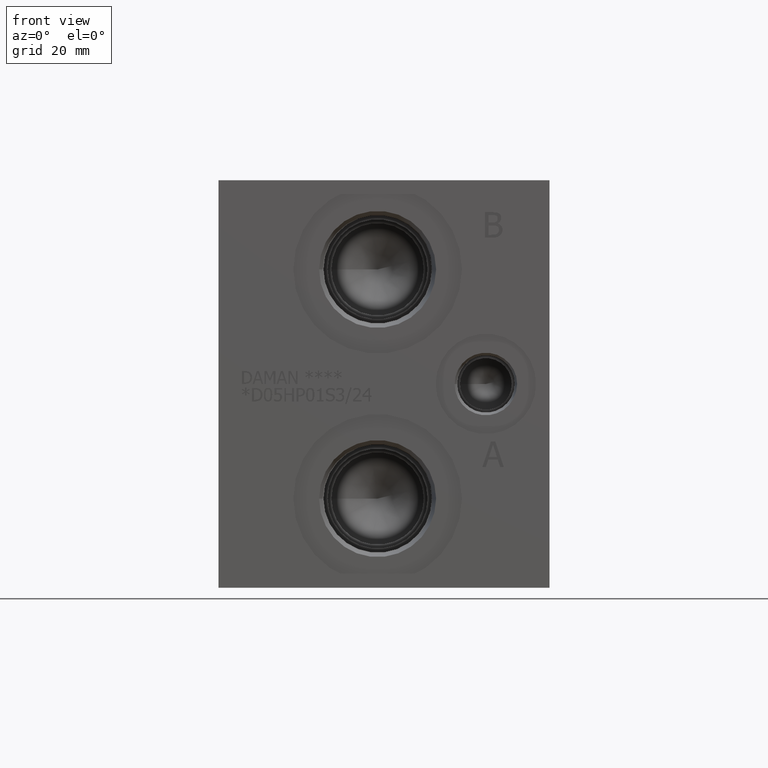
[diagram: clean part render]
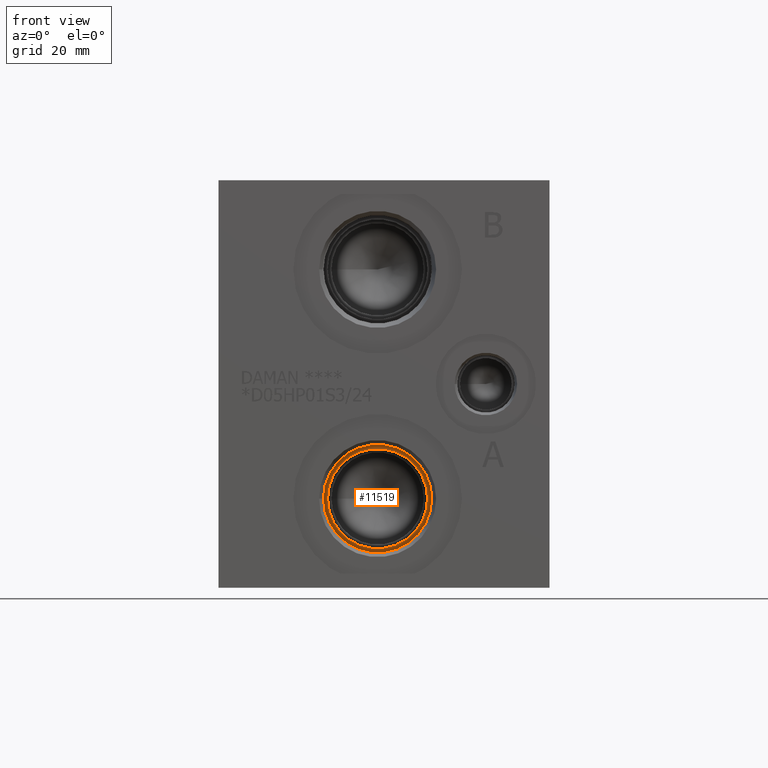
[diagram: same view with one face highlighted and labeled with its STEP entity id]
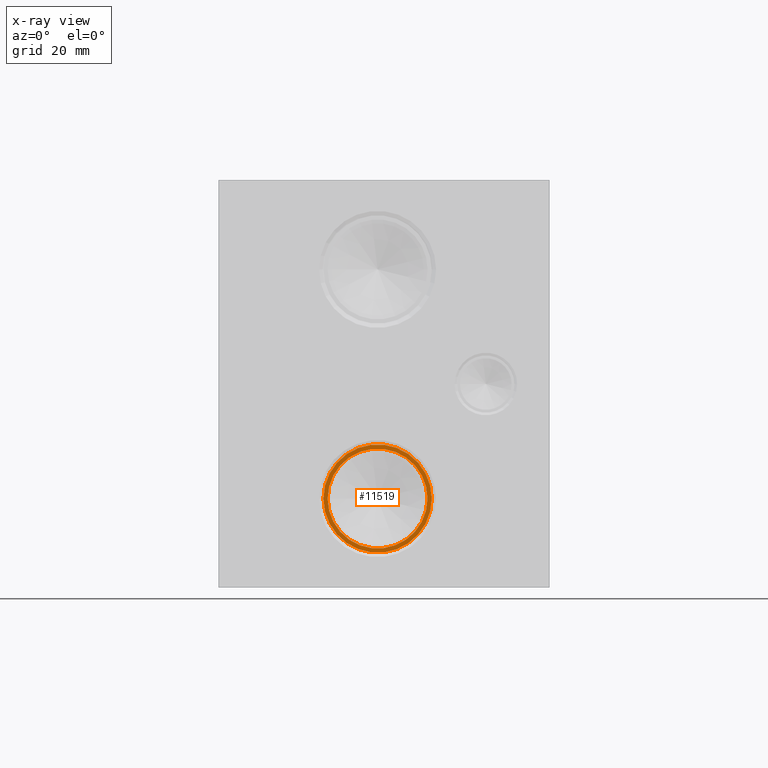
[diagram: x-ray of the same camera — body ghosted, the highlighted face saturated]
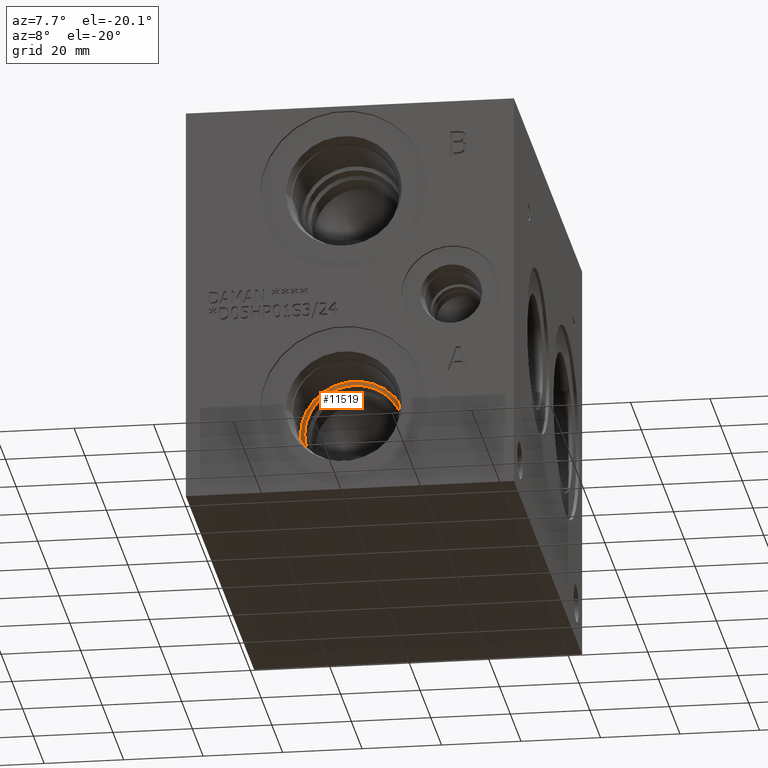
[diagram: same view with one face highlighted and labeled with its STEP entity id]
A machine part, front view. The second image highlights one B-rep face of the part: STEP entity #11519.
The next image is the same camera in x-ray: the body ghosted, the highlighted face saturated — about 0% of this face is hidden behind the body in this view.
A second angle (auxiliary view) of the same face is appended — the face is thin or edge-on in the first view.
In plain terms, the highlighted planar face has unit normal (0, -1, 0).
Its self-contained STEP definition (entity closure, byte-faithful):
#334=CIRCLE('',#12198,13.5001);
#335=CIRCLE('',#12199,13.5001);
#336=CIRCLE('',#12200,12.4587);
#435=FACE_BOUND('',#2098,.T.);
#1432=FACE_OUTER_BOUND('',#2097,.T.);
#2097=EDGE_LOOP('',(#10018,#10019));
#2098=EDGE_LOOP('',(#10020));
#5355=VERTEX_POINT('',#19689);
#5356=VERTEX_POINT('',#19690);
#5357=VERTEX_POINT('',#19693);
#6933=EDGE_CURVE('',#5355,#5356,#334,.T.);
#6934=EDGE_CURVE('',#5356,#5355,#335,.T.);
#6935=EDGE_CURVE('',#5357,#5357,#336,.T.);
#10018=ORIENTED_EDGE('',*,*,#6933,.T.);
#10019=ORIENTED_EDGE('',*,*,#6934,.T.);
#10020=ORIENTED_EDGE('',*,*,#6935,.F.);
#10501=PLANE('',#12197);
#11519=ADVANCED_FACE('',(#1432,#435),#10501,.T.);
#12197=AXIS2_PLACEMENT_3D('',#19688,#14594,#14595);
#12198=AXIS2_PLACEMENT_3D('',#19691,#14596,#14597);
#12199=AXIS2_PLACEMENT_3D('',#19692,#14598,#14599);
#12200=AXIS2_PLACEMENT_3D('',#19694,#14600,#14601);
#14594=DIRECTION('center_axis',(0.,-1.,0.));
#14595=DIRECTION('ref_axis',(1.,0.,0.));
#14596=DIRECTION('center_axis',(0.,-1.,0.));
#14597=DIRECTION('ref_axis',(1.,0.,0.));
#14598=DIRECTION('center_axis',(0.,-1.,0.));
#14599=DIRECTION('ref_axis',(1.,0.,0.));
#14600=DIRECTION('center_axis',(0.,-1.,0.));
#14601=DIRECTION('ref_axis',(1.,0.,0.));
#19688=CARTESIAN_POINT('Origin',(39.6748,19.8374,22.225));
#19689=CARTESIAN_POINT('',(53.1749,19.8374,22.225));
#19690=CARTESIAN_POINT('',(26.1747,19.8374,22.225));
#19691=CARTESIAN_POINT('Origin',(39.6748,19.8374,22.225));
#19692=CARTESIAN_POINT('Origin',(39.6748,19.8374,22.225));
#19693=CARTESIAN_POINT('',(27.2161,19.8374,22.225));
#19694=CARTESIAN_POINT('Origin',(39.6748,19.8374,22.225));